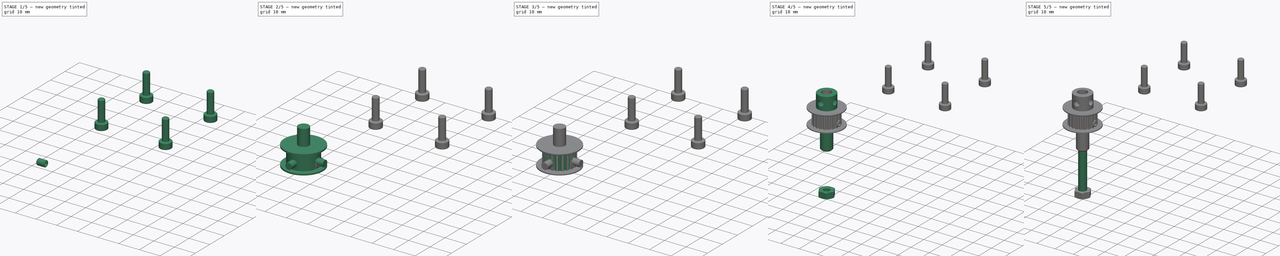
[diagram: build sequence overview — one tinted view per stage of 5, left to right]
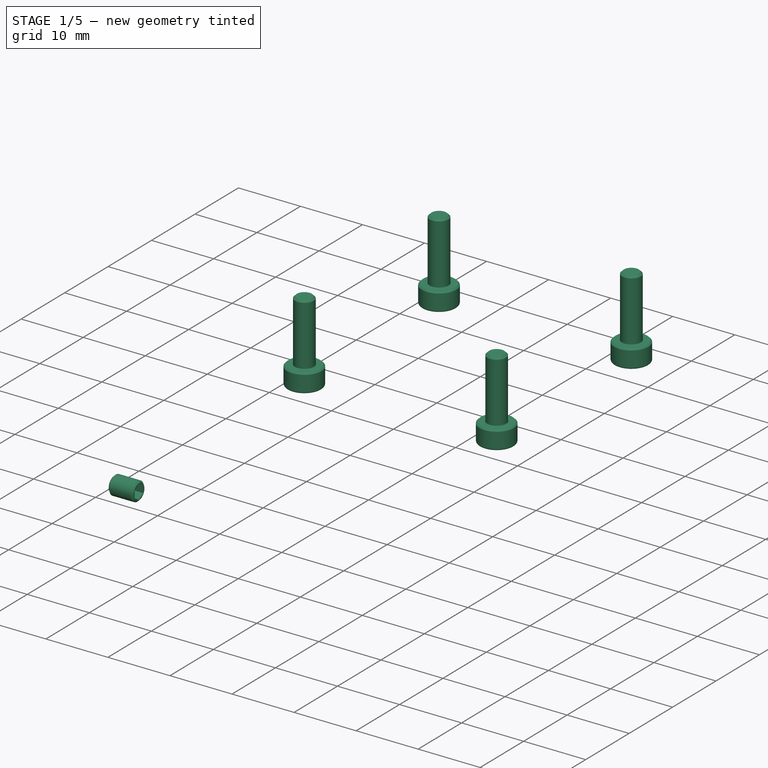
[diagram: stage 1 of 5 — iso view after this stage's code; geometry added in this stage tinted green]
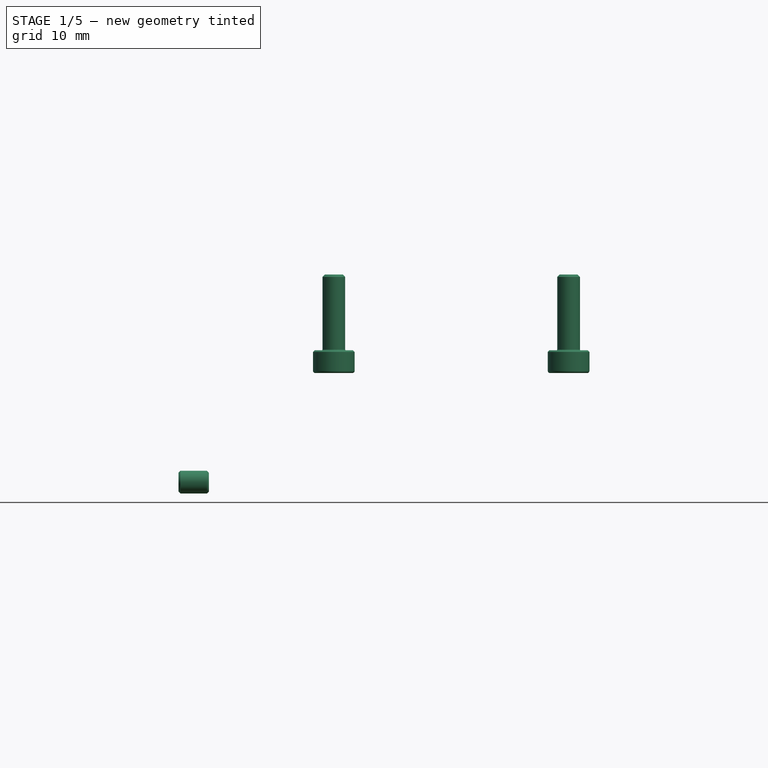
[diagram: stage 1 of 5 — front view after this stage's code; geometry added in this stage tinted green]
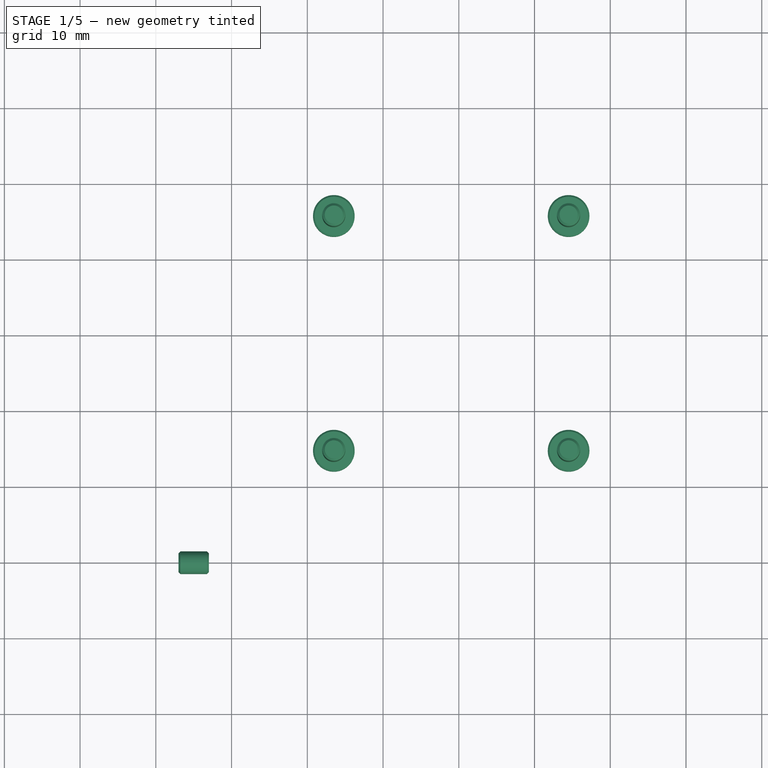
[diagram: stage 1 of 5 — top view after this stage's code; geometry added in this stage tinted green]
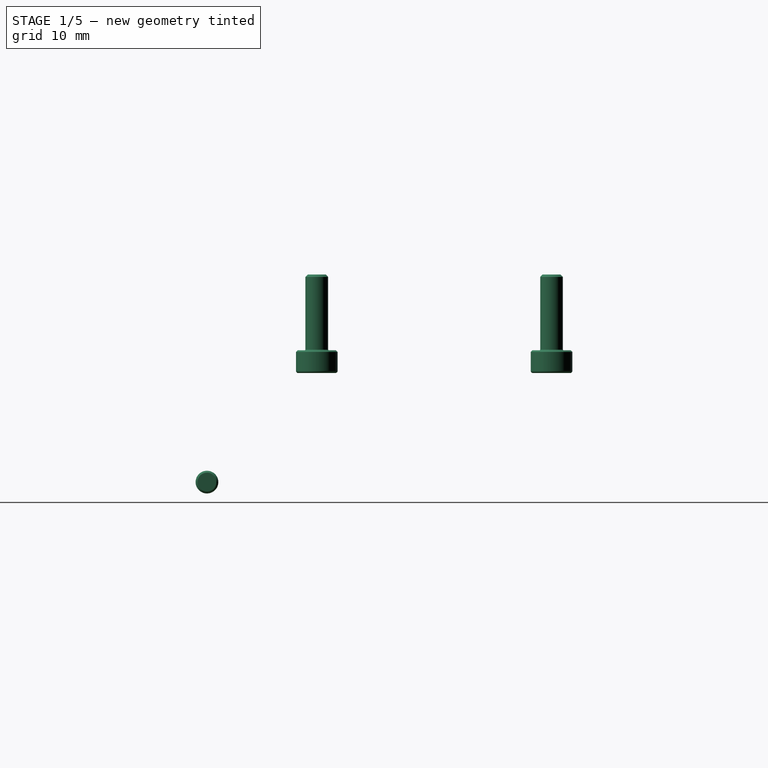
[diagram: stage 1 of 5 — right view after this stage's code; geometry added in this stage tinted green]
FCSTD DOCUMENT  (FreeCAD 0.18R16110 (Git))
Label: tribo_nemamount_ass
License: All rights reserved
LicenseURL: http://en.wikipedia.org/wiki/All_rights_reserved
objects: Part::FeaturePython×17, Part::Feature×10, App::Part×10, Part::Cylinder×9, App::DocumentObjectGroup×4, Part::Chamfer×4, Part::Cut×3, Part::MultiFuse×3, Sketcher::SketchObject×1, PartDesign::Pocket×1
note: 49 computed .brp shape members not serialized (recipe doc carries the construction recipe); baked Part::Feature solids carry a one-line shape summary decoded from their .brp

FEATURE [Part::Cylinder] Cylinder006  label="Cilindro006"
  Angle = 360
  AttacherType = Attacher::AttachEngine3D
  Height = 4
  Placement = pos=(3,0,2.6) rot=(0,1,0;1.5708rad)
  Radius = 1.5
FEATURE [Part::Chamfer] Chamfer002
  Base = -> Cylinder006
  Edges = 2 edges r=0.25: [Edge1,Edge3]
FEATURE [PartDesign::Pocket] Pocket  label="Tornillo"
  Length = 2.5
  Length2 = 100
  Profile = -> Sketch
  Type = 0
FEATURE [App::DocumentObjectGroup] Grupo  label="Tornillos"
  Group = -> [Pocket,Chamfer002,Pocket002,Pocket003]
FEATURE [App::Part] Part010  label="GT2Pulley-V2"
  Group = -> [Pocket002,Pocket003,Chamfer002,Cylinder006,Sketch,Pocket,Grupo,Cut001,Chamfer001,Fusion001,Fusion002,Array,Fusion,Cut,Cylinder,Chamfer,Chamfer003,Cylinder001,Cylinder002,Cylinder003,Cylinder004,Cylinder005,Cylinder007,Cylinder008,Cut002]
  Origin = -> Origin010
  Placement = pos=(39,30,6) rot=(0,0,1;1.5708rad)
FEATURE [Part::FeaturePython] Screw008  label="M3x10-Screw"  # Fasteners workbench fastener (typed FeaturePython)
  Placement = pos=(54.5,14.5,20) rot=(1,0,0;3.14159rad)
  diameter = 4
  invert = false
  length = 3
  matchOuter = false
  offset = 0
  thread = false
  type = 15
FEATURE [Part::FeaturePython] Screw009  label="M3x10-Screw001"  # Fasteners workbench fastener (typed FeaturePython)
  Placement = pos=(23.5,14.5,20) rot=(1,0,0;3.14159rad)
  diameter = 4
  invert = false
  length = 3
  matchOuter = false
  offset = 0
  thread = false
  type = 15
FEATURE [Part::FeaturePython] Screw010  label="M3x10-Screw004"  # Fasteners workbench fastener (typed FeaturePython)
  Placement = pos=(54.5,45.5,20) rot=(1,0,0;3.14159rad)
  diameter = 4
  invert = false
  length = 3
  matchOuter = false
  offset = 0
  thread = false
  type = 15
FEATURE [Part::FeaturePython] Screw011  label="M3x10-Screw003"  # Fasteners workbench fastener (typed FeaturePython)
  Placement = pos=(23.5,45.5,20) rot=(1,0,0;3.14159rad)
  diameter = 4
  invert = false
  length = 3
  matchOuter = false
  offset = 0
  thread = false
  type = 15
FEATURE [App::DocumentObjectGroup] Group002  label="Innensechskant M3x10"
  Group = -> [Screw011,Screw010,Screw009,Screw008]
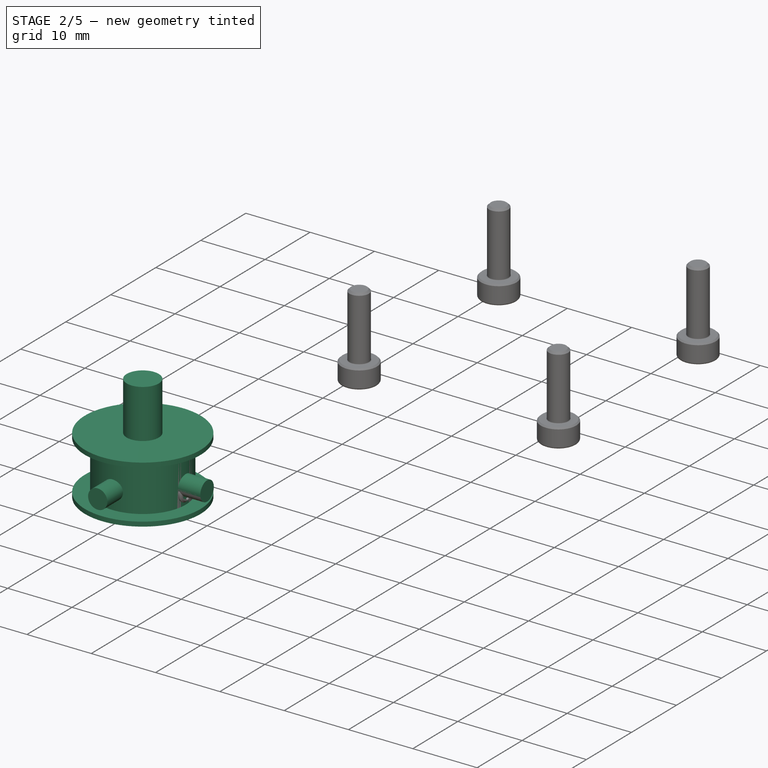
[diagram: stage 2 of 5 — iso view after this stage's code; geometry added in this stage tinted green]
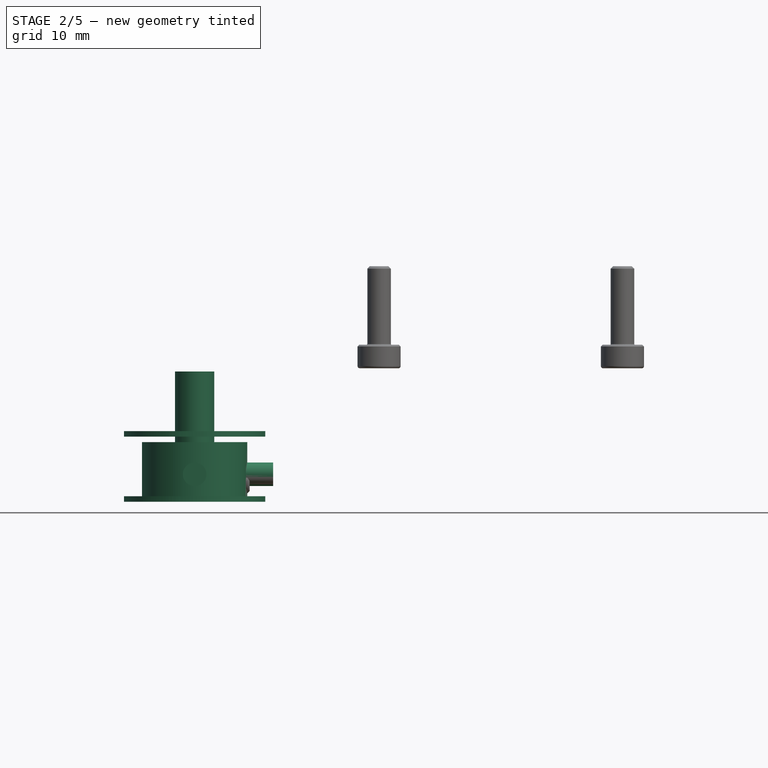
[diagram: stage 2 of 5 — front view after this stage's code; geometry added in this stage tinted green]
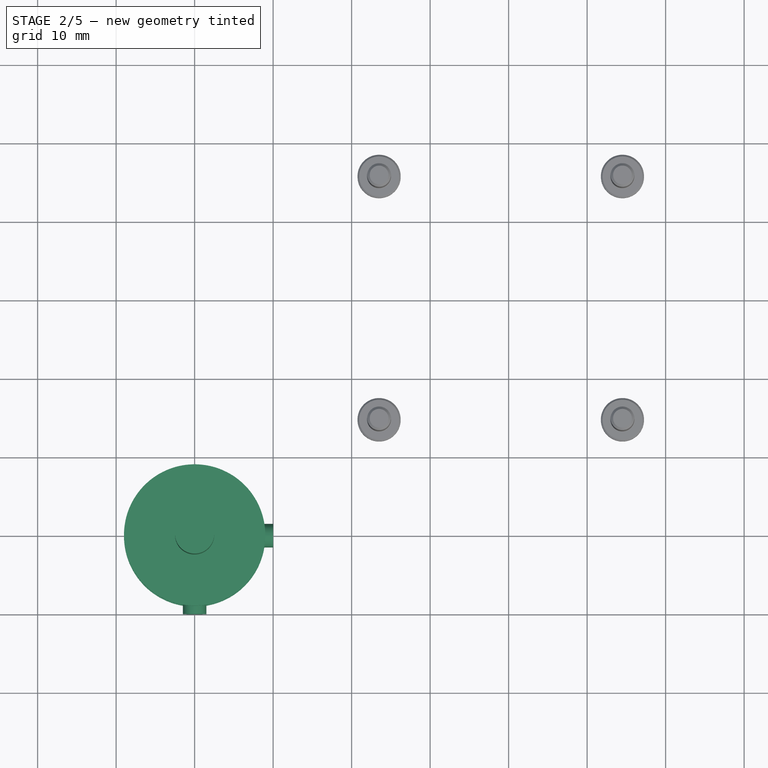
[diagram: stage 2 of 5 — top view after this stage's code; geometry added in this stage tinted green]
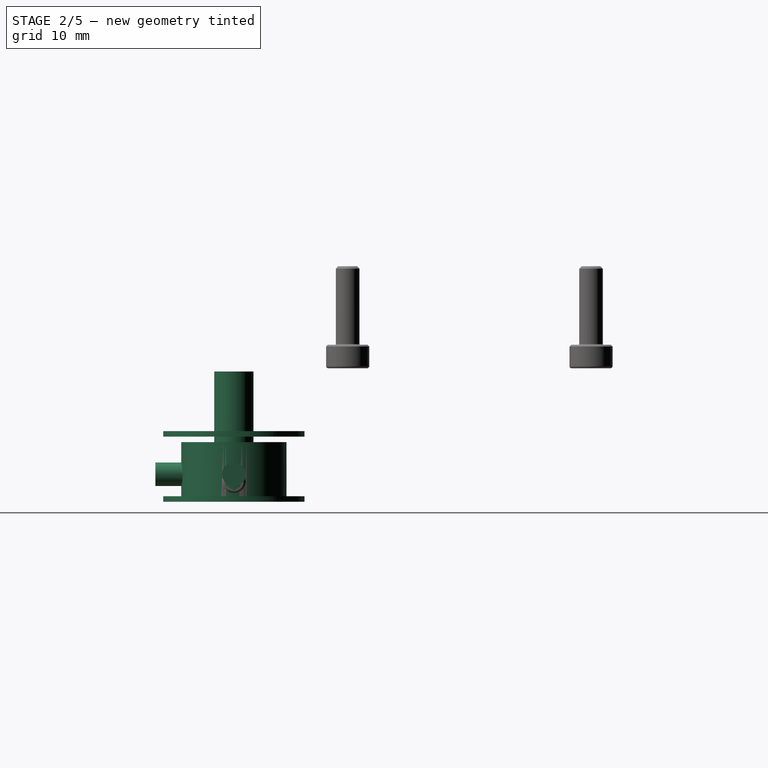
[diagram: stage 2 of 5 — right view after this stage's code; geometry added in this stage tinted green]
FEATURE [Part::Feature] Pocket003  label="TornilloM3-2"
  Placement = pos=(-2e-16,1,9.9) rot=(0,0,-1;1.5708rad)
  shape: bbox 3 x 4 x 3 mm, 12 faces (baked)
FEATURE [Part::Cylinder] Cylinder001  label="Cilindro001"
  Angle = 360
  AttacherType = Attacher::AttachEngine3D
  Height = 7.6
  Radius = 6.7
FEATURE [Part::Cylinder] Cylinder002  label="Cilindro002"
  Angle = 360
  AttacherType = Attacher::AttachEngine3D
  Height = 0.7
  Radius = 9
FEATURE [Part::Cylinder] Cylinder003  label="Cilindro003"
  Angle = 360
  AttacherType = Attacher::AttachEngine3D
  Height = 0.7
  Placement = pos=(0,0,8.3) rot=(0,0,1;0rad)
  Radius = 9
FEATURE [Part::Cylinder] Cylinder004  label="Cilindro004"
  Angle = 360
  AttacherType = Attacher::AttachEngine3D
  Height = 16.6
  Radius = 2.5
FEATURE [Part::Cylinder] Cylinder005  label="Cilindro005"
  Angle = 360
  AttacherType = Attacher::AttachEngine3D
  Height = 9
  Placement = pos=(1,0,3.5) rot=(0,1,0;1.5708rad)
  Radius = 1.5
FEATURE [Sketcher::SketchObject] Sketch
  ExternalGeometry = -> [Chamfer002]
  MapMode = 5
  Placement = pos=(7,0,0) rot=(0.57735,0.57735,0.57735;2.0944rad)
  Support = -> [Chamfer002]
  sketch-geometry (9):
    g0: LineSegment StartX=-1 StartY=3.17735 StartZ=0 EndX=0 EndY=3.7547 EndZ=0
    g1: LineSegment StartX=0 StartY=3.7547 StartZ=0 EndX=1 EndY=3.17735 EndZ=0
    g2: LineSegment StartX=1 StartY=3.17735 StartZ=0 EndX=1 EndY=2.02265 EndZ=0
    g3: LineSegment StartX=1 StartY=2.02265 StartZ=0 EndX=0 EndY=1.4453 EndZ=0
    g4: LineSegment StartX=0 StartY=1.4453 StartZ=0 EndX=-1 EndY=2.02265 EndZ=0
    g5: LineSegment StartX=-1 StartY=2.02265 StartZ=0 EndX=-1 EndY=3.17735 EndZ=0
    g6: LineSegment [constr] StartX=0 StartY=2.6 StartZ=0 EndX=0 EndY=3.7547 EndZ=0
    g7: LineSegment [constr] StartX=0 StartY=2.6 StartZ=0 EndX=0 EndY=1.4453 EndZ=0
    g8: LineSegment [constr] StartX=0 StartY=2.6 StartZ=0 EndX=-1 EndY=3.17735 EndZ=0
  constraints (24):
    c: Coincident(g0,g1)
    c: Coincident(g1,g2)
    c: Coincident(g2,g3)
    c: Coincident(g3,g4)
    c: Coincident(g4,g5)
    c: Coincident(g5,g0)
    c: Vertical(g5)
    c: Vertical(g2)
    c: Equal(g0,g1)
    c: Equal(g1,g2)
    c: Equal(g2,g3)
    c: Equal(g3,g4)
    c: Equal(g4,g5)
    c: Coincident(g8,g6)
    c: Coincident(g8,g7)
    c: Coincident(g8,g0)
    c: Coincident(g6,g0)
    c: Coincident(g7,g3)
    c: Equal(g6,g8)
    c: Equal(g8,g7)
    c: Vertical(g6)
    c: Vertical(g7)
    c: DistanceX(g4,g2) = 2
    c: Coincident(g6,g-3)
FEATURE [Part::Cylinder] Cylinder007  label="Cilindro007"
  Angle = 360
  AttacherType = Attacher::AttachEngine3D
  Height = 7.3
  Radius = 4.8
FEATURE [Part::Chamfer] Chamfer003
  Base = -> Cylinder007
  Edges = 1 edges r=0.2: [Edge1]
FEATURE [Part::Cylinder] Cylinder008  label="Cilindro008"
  Angle = 360
  AttacherType = Attacher::AttachEngine3D
  Height = 9
  Placement = pos=(0,-1,3.5) rot=(0.57735,0.57735,-0.57735;2.0944rad)
  Radius = 1.5
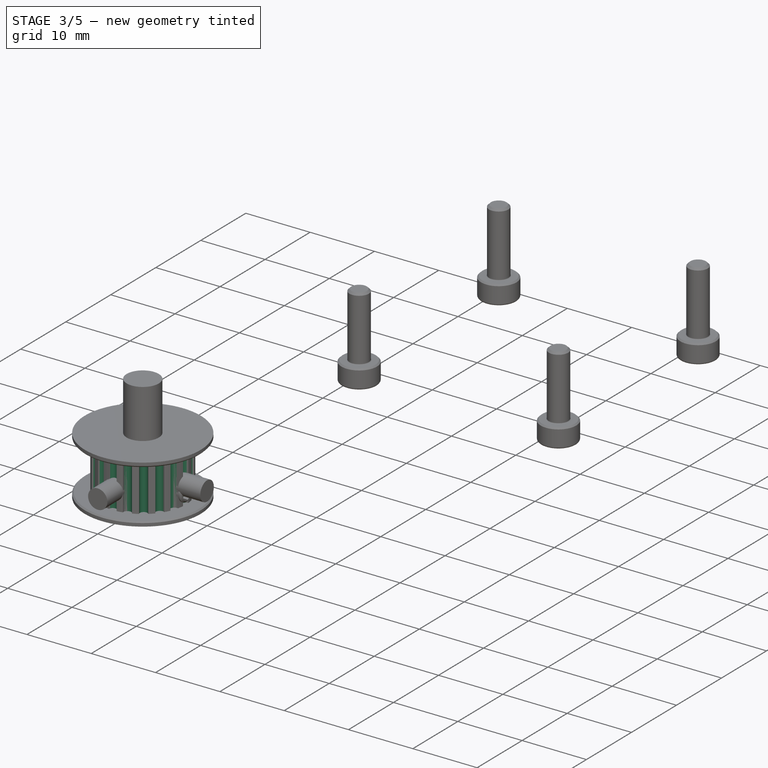
[diagram: stage 3 of 5 — iso view after this stage's code; geometry added in this stage tinted green]
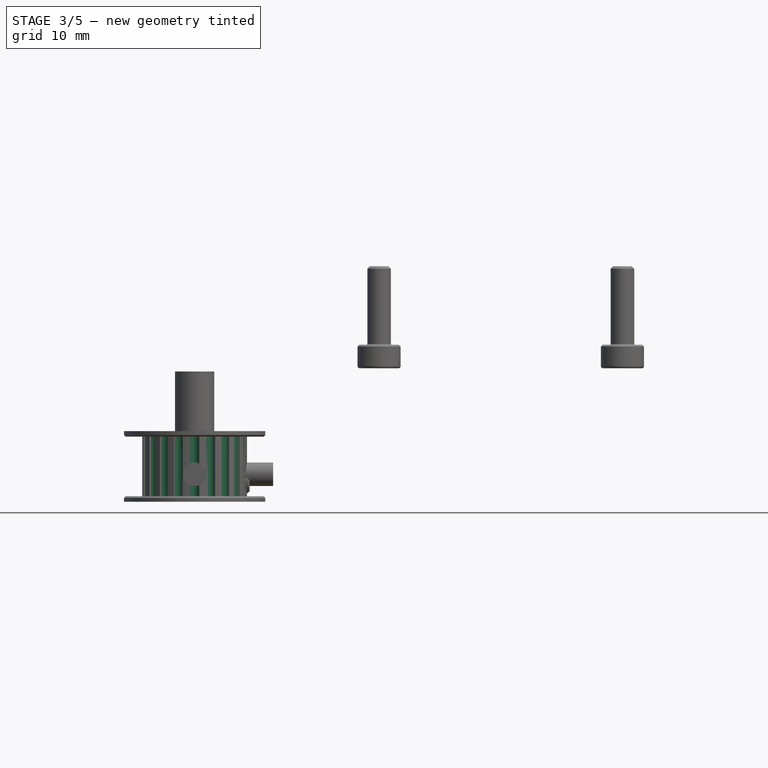
[diagram: stage 3 of 5 — front view after this stage's code; geometry added in this stage tinted green]
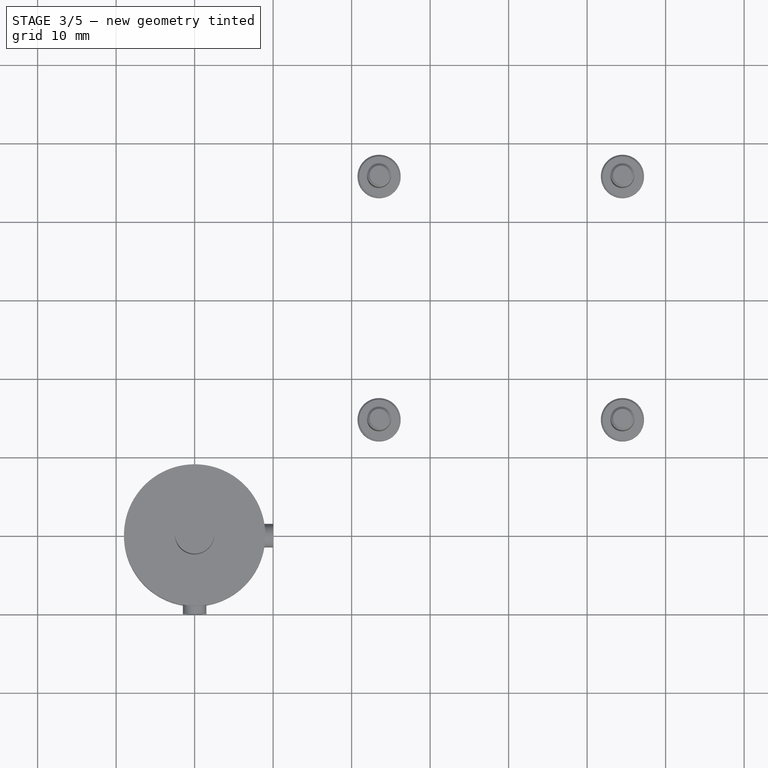
[diagram: stage 3 of 5 — top view after this stage's code; geometry added in this stage tinted green]
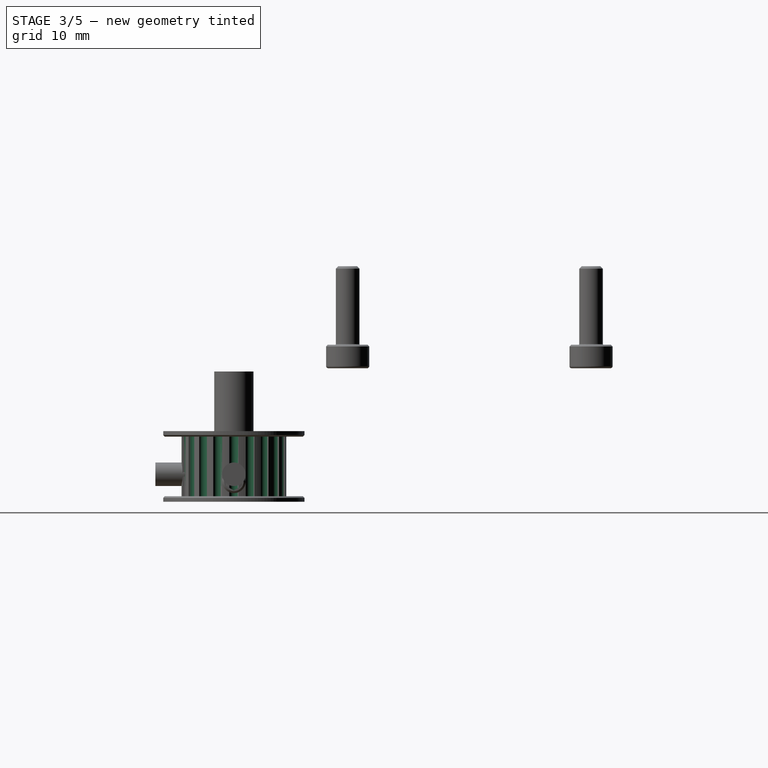
[diagram: stage 3 of 5 — right view after this stage's code; geometry added in this stage tinted green]
FEATURE [Part::Feature] Body003
  Placement = pos=(5,-5,-8) rot=(0,1,0;3.14159rad)
  shape: bbox 10 x 10 x 3 mm, 9 faces (baked)
FEATURE [App::Part] Part003  label="M6x12screwnutplate-003"
  Group = -> [Body003,Screw002]
  Origin = -> Origin004
  Placement = pos=(90,30,-6) rot=(-0.707107,0.707107,0;3.14159rad)
FEATURE [Part::Feature] Body002
  Placement = pos=(5,-5,-8) rot=(0,1,0;3.14159rad)
  shape: bbox 10 x 10 x 3 mm, 9 faces (baked)
FEATURE [App::Part] Part002  label="M6x12screwnutplate-002"
  Group = -> [Body002,Screw001]
  Origin = -> Origin002
  Placement = pos=(90,30,26) rot=(0,0,1;1.5708rad)
FEATURE [App::Part] Part004  label="M6x12screwnutplate-004"
  Group = -> [Body004,Screw003]
  Origin = -> Origin003
  Placement = pos=(70,30,-6) rot=(-0.707107,0.707107,0;3.14159rad)
FEATURE [App::DocumentObjectGroup] Group  label="M6x12screwnutplate"
  Group = -> [Part003,Part004,Part002,Part009]
FEATURE [Part::Feature] Fusion001001  label="Motor-with-connector-final"
  Placement = pos=(39,30,68) rot=(0.707107,-0.707107,0;3.14159rad)
  shape: bbox 42.3 x 48 x 60.1 mm, 110 faces (baked)
FEATURE [Part::Feature] Pocket002  label="TornilloM004"
  Placement = pos=(-1,0,9.9) rot=(0,0,1;0rad)
  shape: bbox 4 x 3 x 3 mm, 12 faces (baked)
FEATURE [Part::Cylinder] Cylinder  label="Cilindro"
  Angle = 360
  AttacherType = Attacher::AttachEngine3D
  Height = 7.6
  Placement = pos=(6.7,0,0) rot=(0,0,1;0rad)
  Radius = 0.6
FEATURE [Part::FeaturePython] Array  # Draft array (typed FeaturePython)
  Angle = 360
  ArrayType = 1
  Axis = (0,0,1)
  Base = -> Cylinder
  Center = (0,0,0)
  IntervalX = (1,0,0)
  IntervalY = (0,1,0)
  IntervalZ = (0,0,1)
  NumberPolar = 20
  NumberX = 2
  NumberY = 2
  NumberZ = 1
FEATURE [Part::Cut] Cut
  Base = -> Cylinder001
  Placement = pos=(0,0,0.7) rot=(0,0,1;0rad)
  Tool = -> Array
FEATURE [Part::Chamfer] Chamfer
  Base = -> Cylinder002
  Edges = 1 edges r=0.2: [Edge1]
FEATURE [Part::Chamfer] Chamfer001
  Base = -> Cylinder003
  Edges = 1 edges r=0.2: [Edge3]
FEATURE [Part::MultiFuse] Fusion
  Shapes = -> [Cut,Chamfer,Chamfer001]
FEATURE [Part::MultiFuse] Fusion001
  Shapes = -> [Cylinder008,Cylinder005]
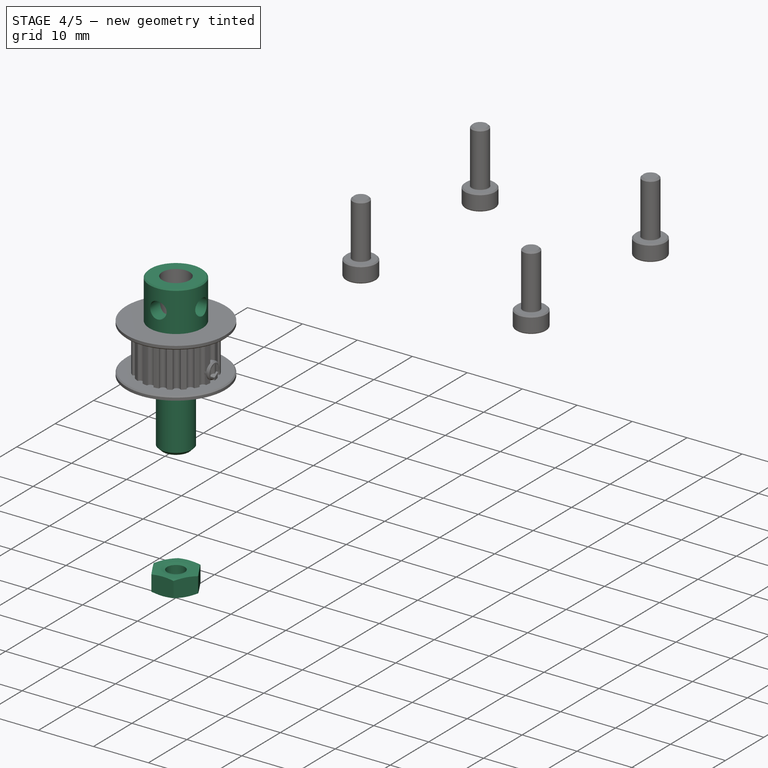
[diagram: stage 4 of 5 — iso view after this stage's code; geometry added in this stage tinted green]
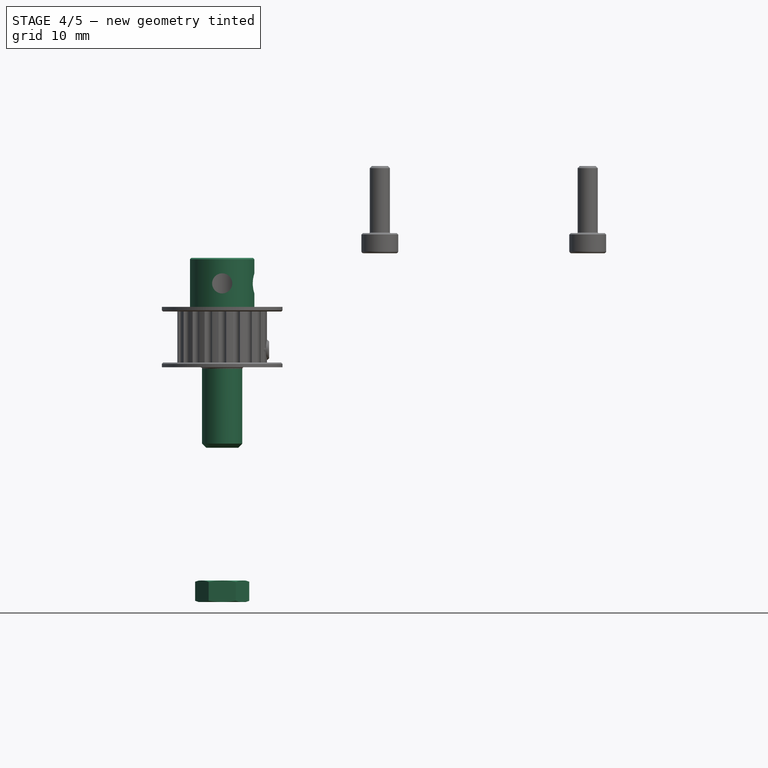
[diagram: stage 4 of 5 — front view after this stage's code; geometry added in this stage tinted green]
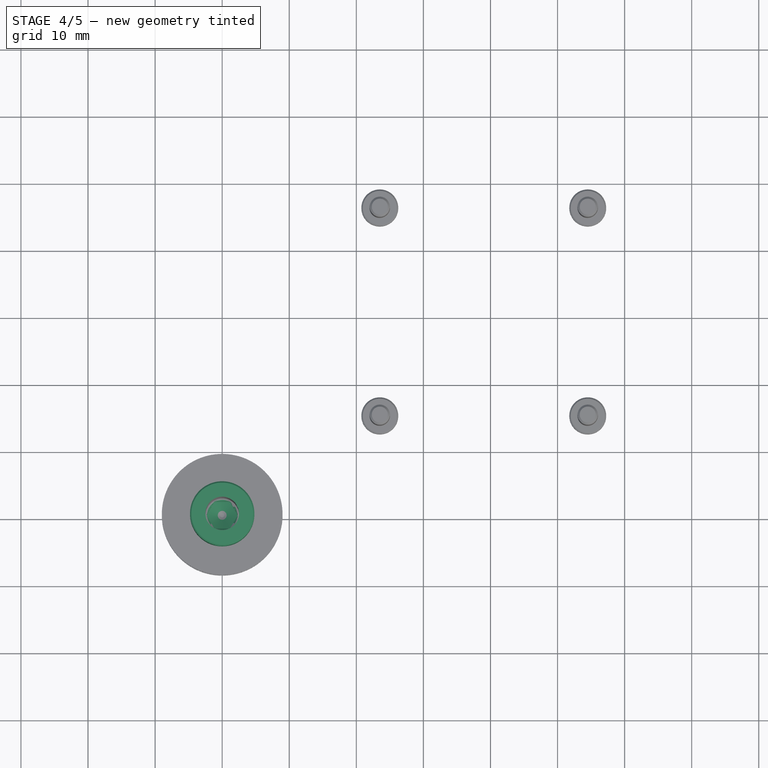
[diagram: stage 4 of 5 — top view after this stage's code; geometry added in this stage tinted green]
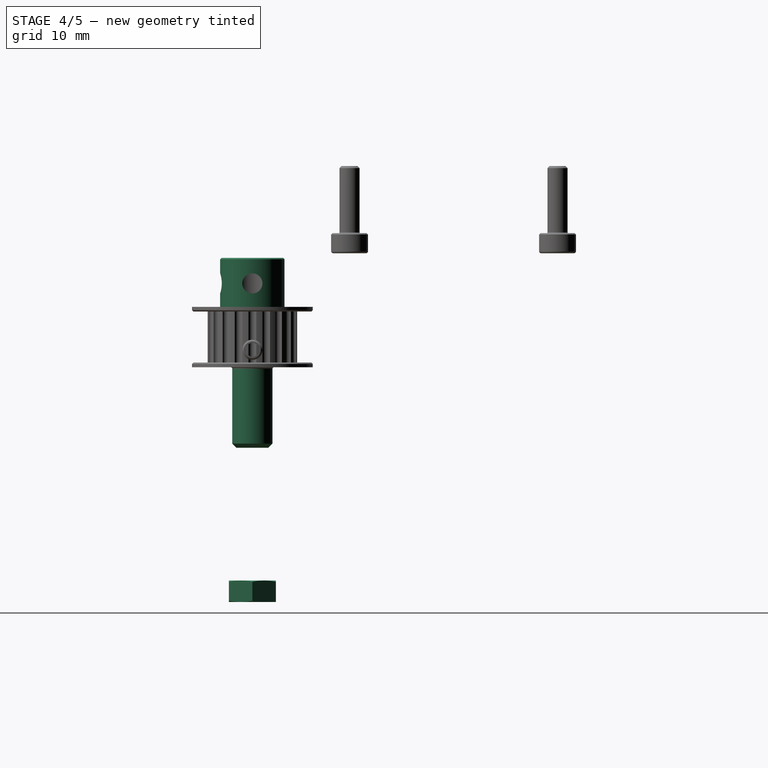
[diagram: stage 4 of 5 — right view after this stage's code; geometry added in this stage tinted green]
FEATURE [Part::FeaturePython] Nut004  label="M4-Nut003"  # Fasteners workbench fastener (typed FeaturePython)
  Placement = pos=(0,0,-35) rot=(0,0,1;0rad)
  diameter = 6
  invert = false
  matchOuter = false
  offset = 0
  thread = false
  type = 4
FEATURE [App::Part] Part008  label="M4x35screwnut-004"
  Group = -> [Screw007,Nut004]
  Origin = -> Origin008
  Placement = pos=(90,6,26) rot=(0,0,1;0rad)
FEATURE [App::DocumentObjectGroup] Group001  label="M4x35screwnut"
  Group = -> [Part008,Part007,Part006,Part005]
FEATURE [Part::FeaturePython] Screw003  label="M6x12-Screw003"  # Fasteners workbench fastener (typed FeaturePython)
  diameter = 4
  invert = false
  length = 1
  matchOuter = false
  offset = 0
  thread = false
  type = 20
FEATURE [Part::FeaturePython] Screw002  label="M6x12-Screw002"  # Fasteners workbench fastener (typed FeaturePython)
  diameter = 4
  invert = false
  length = 1
  matchOuter = false
  offset = 0
  thread = false
  type = 20
FEATURE [Part::FeaturePython] Screw  label="M6x12-Screw"  # Fasteners workbench fastener (typed FeaturePython)
  diameter = 4
  invert = false
  length = 1
  matchOuter = false
  offset = 0
  thread = false
  type = 20
FEATURE [Part::Feature] Body004
  Placement = pos=(5,-5,-8) rot=(0,1,0;3.14159rad)
  shape: bbox 10 x 10 x 3 mm, 9 faces (baked)
FEATURE [Part::Feature] Body001
  Placement = pos=(5,-5,-8) rot=(0,1,0;3.14159rad)
  shape: bbox 10 x 10 x 3 mm, 9 faces (baked)
FEATURE [App::Part] Part009  label="M6x12screwnutplate-001"
  Group = -> [Body001,Screw]
  Origin = -> Origin009
  Placement = pos=(70,30,26) rot=(0,0,1;1.5708rad)
FEATURE [Part::FeaturePython] Screw001  label="M6x12-Screw001"  # Fasteners workbench fastener (typed FeaturePython)
  diameter = 4
  invert = false
  length = 1
  matchOuter = false
  offset = 0
  thread = false
  type = 20
FEATURE [Part::Cut] Cut001
  Base = -> Chamfer003
  Placement = pos=(0,0,9) rot=(0,0,1;0rad)
  Tool = -> Fusion001
FEATURE [Part::MultiFuse] Fusion002
  Shapes = -> [Fusion,Cut001]
FEATURE [Part::Cut] Cut002  label="PoleaGT2"
  Base = -> Fusion002
  Tool = -> Cylinder004
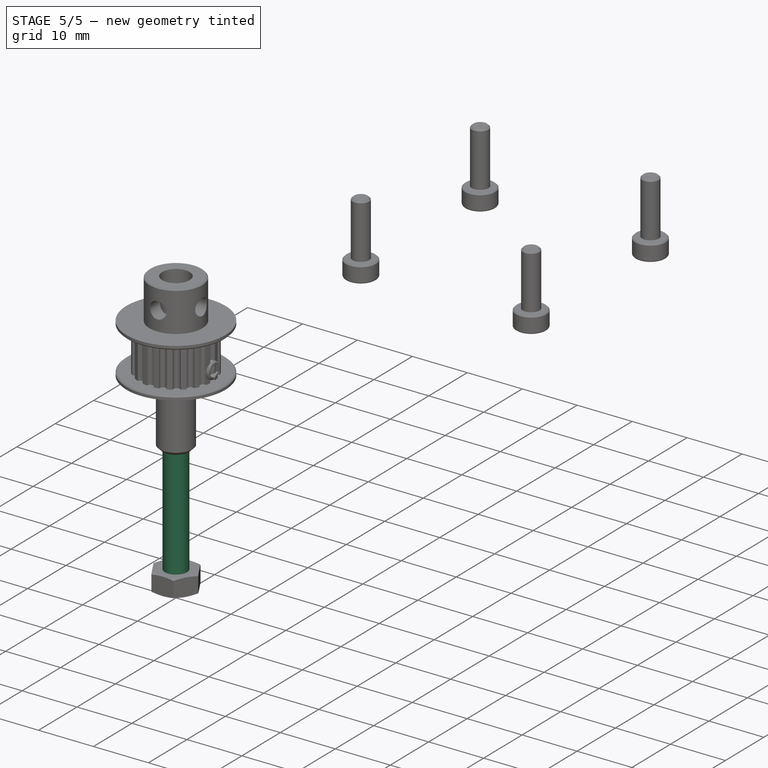
[diagram: stage 5 of 5 — iso view after this stage's code; geometry added in this stage tinted green]
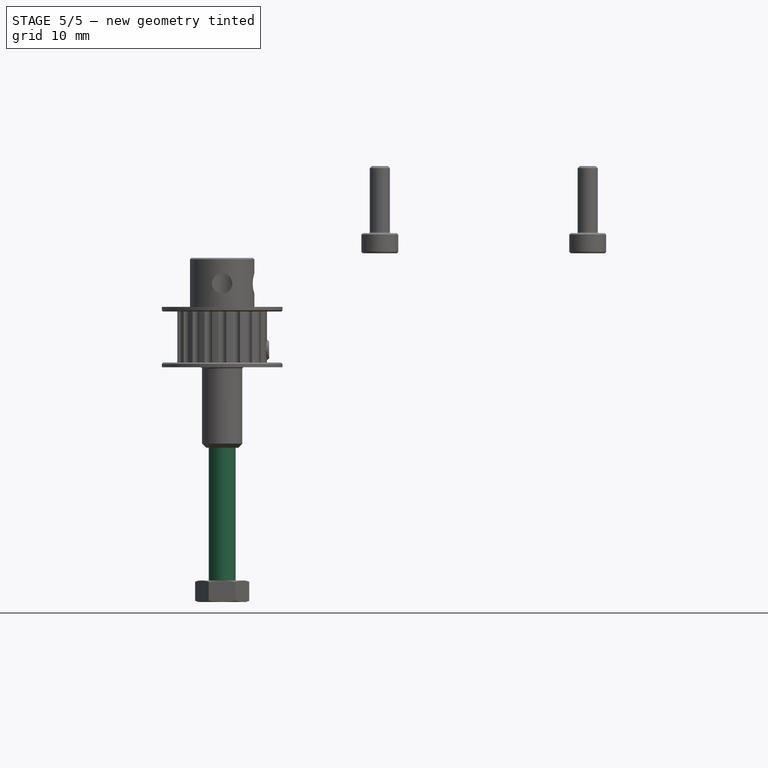
[diagram: stage 5 of 5 — front view after this stage's code; geometry added in this stage tinted green]
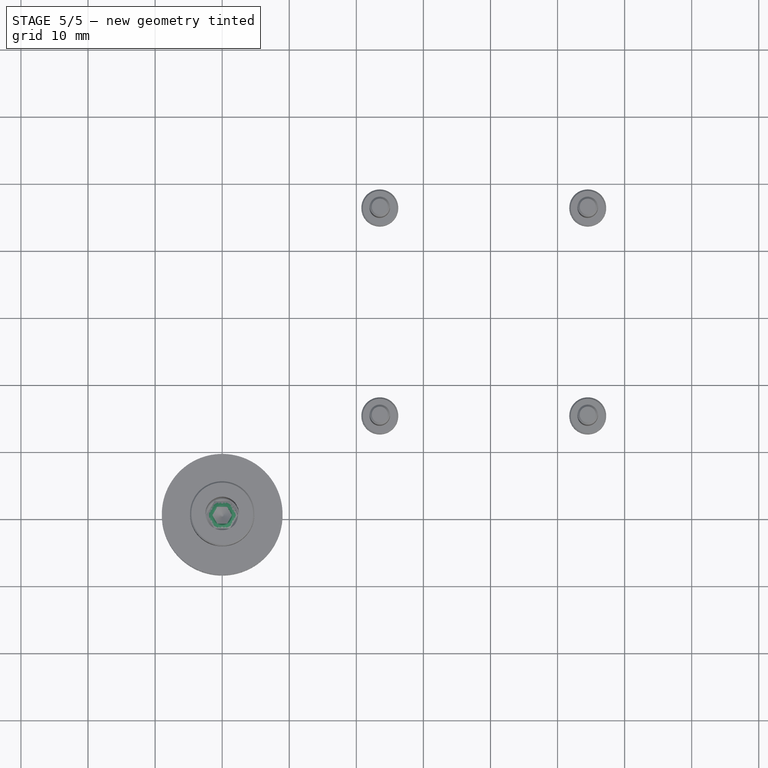
[diagram: stage 5 of 5 — top view after this stage's code; geometry added in this stage tinted green]
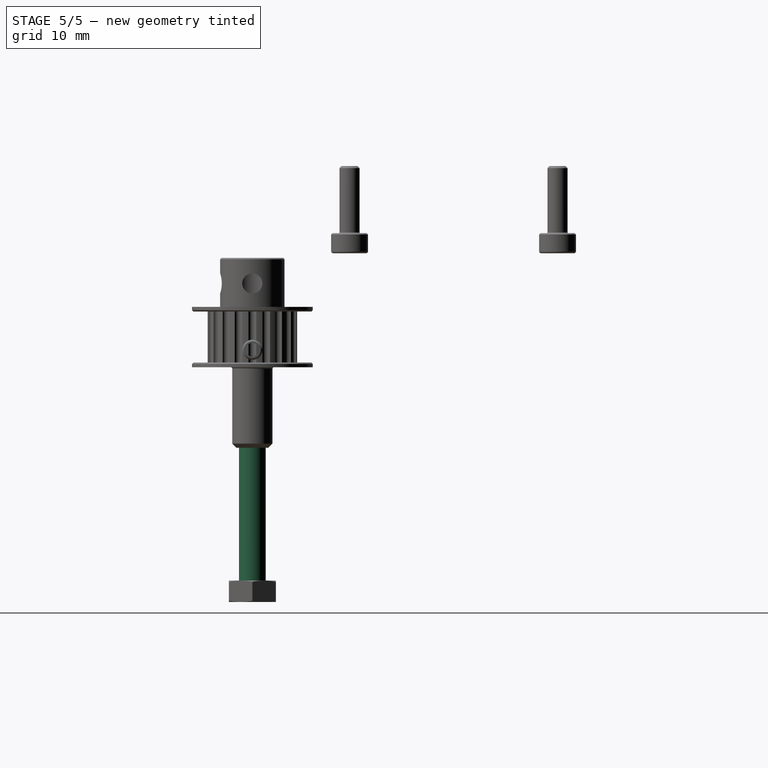
[diagram: stage 5 of 5 — right view after this stage's code; geometry added in this stage tinted green]
FEATURE [Part::Feature] Fillet004001  label="idler_nemamount_links"
  Placement = pos=(0,0,20) rot=(0,0,1;0rad)
  shape: bbox 100 x 56 x 8 mm, 40 faces (baked)
FEATURE [Part::Feature] Fillet004002  label="idler_nemamount_connector"
  shape: bbox 100 x 56 x 20 mm, 26 faces (baked)
FEATURE [Part::Feature] Part__Mirroring001  label="idler_nemamount_rechts"
  shape: bbox 100 x 56 x 8 mm, 40 faces (baked)
FEATURE [App::Part] Part001  label="Rahmen"
  Group = -> [Fillet004001,Fillet004002,Part__Mirroring001]
  Origin = -> Origin001
FEATURE [Part::FeaturePython] Screw004  label="M4x35-Screw"  # Fasteners workbench fastener (typed FeaturePython)
  diameter = 2
  invert = false
  length = 9
  matchOuter = false
  offset = 0
  thread = false
  type = 20
FEATURE [Part::FeaturePython] Nut001  label="M4-Nut"  # Fasteners workbench fastener (typed FeaturePython)
  Placement = pos=(0,0,-35) rot=(0,0,1;0rad)
  diameter = 6
  invert = false
  matchOuter = false
  offset = 0
  thread = false
  type = 4
FEATURE [Part::FeaturePython] Nut002  label="M4-Nut001"  # Fasteners workbench fastener (typed FeaturePython)
  Placement = pos=(0,0,-35) rot=(0,0,1;0rad)
  diameter = 6
  invert = false
  matchOuter = false
  offset = 0
  thread = false
  type = 4
FEATURE [Part::FeaturePython] Screw005  label="M4x35-Screw001"  # Fasteners workbench fastener (typed FeaturePython)
  diameter = 2
  invert = false
  length = 9
  matchOuter = false
  offset = 0
  thread = false
  type = 20
FEATURE [Part::FeaturePython] Screw006  label="M4x35-Screw002"  # Fasteners workbench fastener (typed FeaturePython)
  diameter = 2
  invert = false
  length = 9
  matchOuter = false
  offset = 0
  thread = false
  type = 20
FEATURE [Part::FeaturePython] Nut003  label="M4-Nut002"  # Fasteners workbench fastener (typed FeaturePython)
  Placement = pos=(0,0,-35) rot=(0,0,1;0rad)
  diameter = 6
  invert = false
  matchOuter = false
  offset = 0
  thread = false
  type = 4
FEATURE [App::Part] Part007  label="M4x35screwnut-003"
  Group = -> [Screw006,Nut003]
  Origin = -> Origin007
  Placement = pos=(70,6,26) rot=(0,0,1;0rad)
FEATURE [App::Part] Part005  label="M4x35screwnut-001"
  Group = -> [Screw004,Nut001]
  Origin = -> Origin005
  Placement = pos=(6,50,26) rot=(0,0,1;0rad)
FEATURE [App::Part] Part006  label="M4x35screwnut-002"
  Group = -> [Screw005,Nut002]
  Origin = -> Origin006
  Placement = pos=(6,6,26) rot=(0,0,1;0rad)
FEATURE [Part::FeaturePython] Screw007  label="M4x35-Screw003"  # Fasteners workbench fastener (typed FeaturePython)
  diameter = 2
  invert = false
  length = 9
  matchOuter = false
  offset = 0
  thread = false
  type = 20
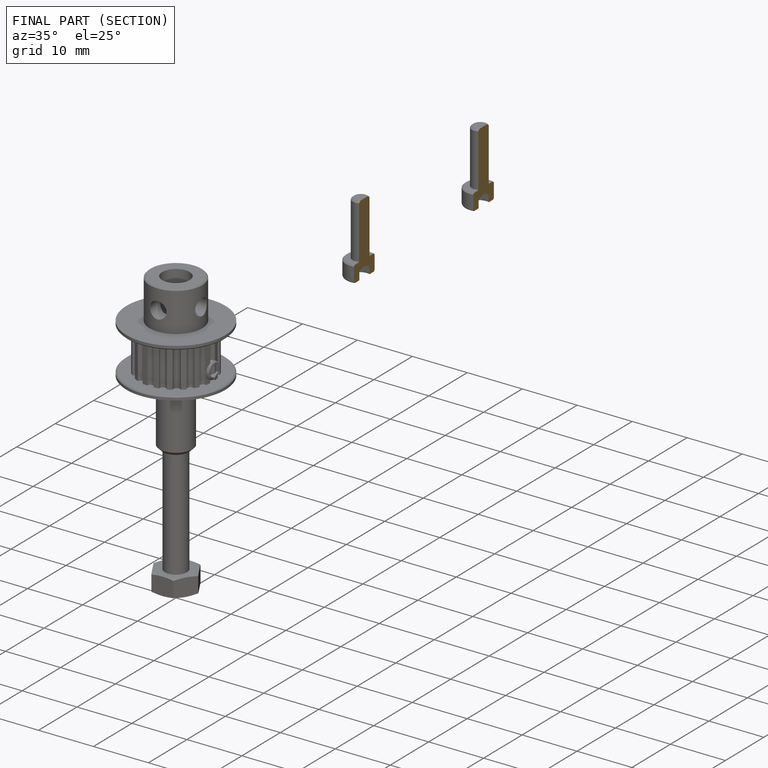
[diagram: finished part — half-section view (interior)]
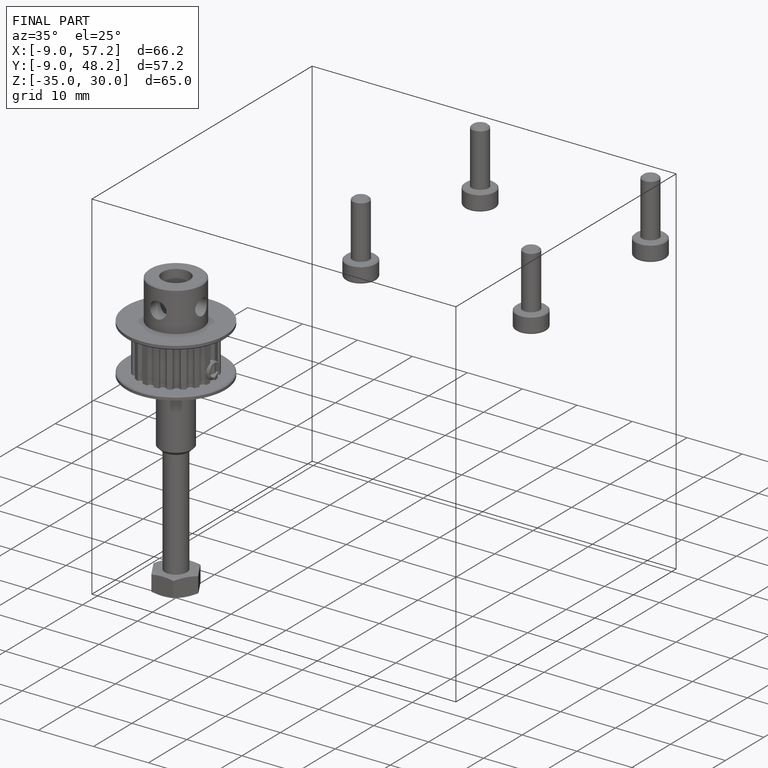
[diagram: finished part — iso view with bounding-box wireframe]
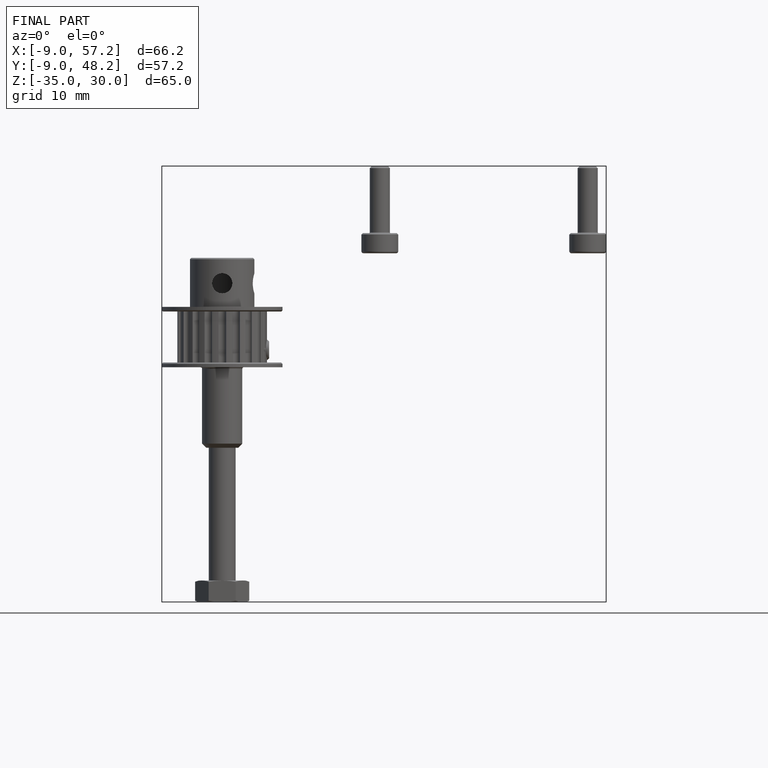
[diagram: finished part — front view with bounding-box wireframe]
